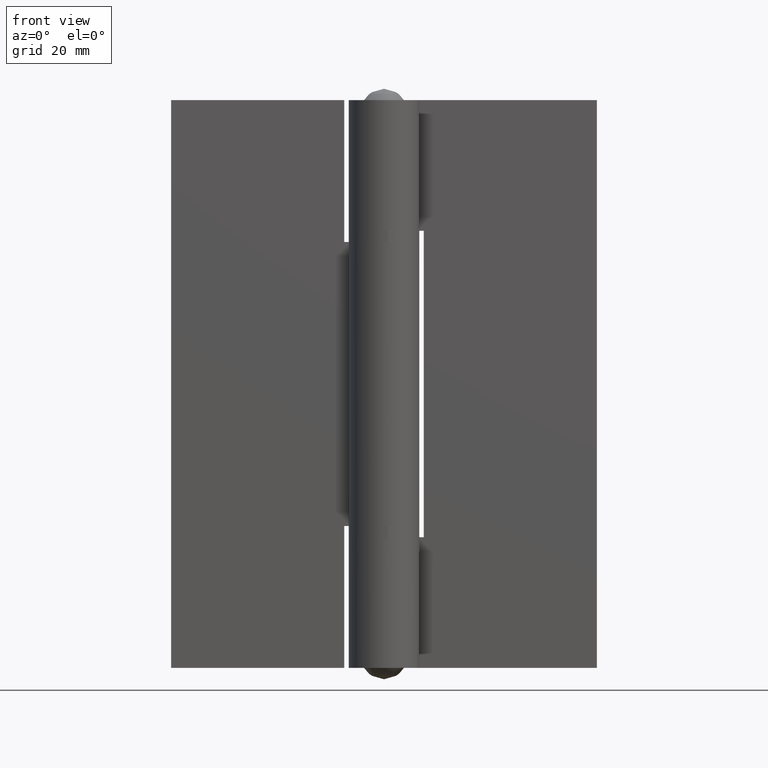
[diagram: clean part render]
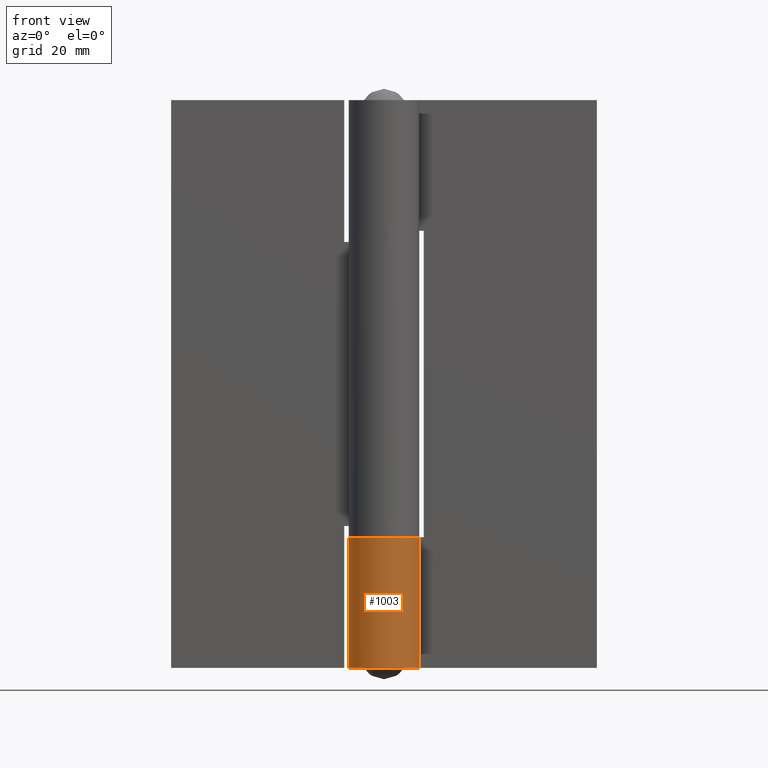
[diagram: same view with one face highlighted and labeled with its STEP entity id]
A machine part, front view. The second image highlights one B-rep face of the part: STEP entity #1003.
In plain terms, the highlighted face is a freeform B-spline surface patch.
Its self-contained STEP definition (entity closure, byte-faithful):
#514=CARTESIAN_POINT('',(-1.138884E-015,6.200001000000000,23.0));
#515=VERTEX_POINT('',#514);
#521=CARTESIAN_POINT('',(5.453210943356470,2.950000475806450,23.0));
#522=VERTEX_POINT('',#521);
#523=CARTESIAN_POINT('',(0.0,6.200001000000000,23.0));
#524=CARTESIAN_POINT('',(-4.723388821527733,6.200000999999999,23.0));
#525=CARTESIAN_POINT('',(-5.977477743463485,1.646138580557449,23.0));
#526=CARTESIAN_POINT('',(-7.231566665399235,-2.907723838885105,23.0));
#527=CARTESIAN_POINT('',(-3.174114561574657,-5.325881067954929,23.0));
#528=CARTESIAN_POINT('',(0.883337542249925,-7.744038297024754,23.0));
#529=CARTESIAN_POINT('',(4.291983680182779,-4.474247253901565,23.0));
#530=CARTESIAN_POINT('',(7.700629818115626,-1.204456210778380,23.0));
#531=CARTESIAN_POINT('',(5.453210943356468,2.950000475806447,23.0));
#539=(BOUNDED_CURVE()B_SPLINE_CURVE(2,(#523,#524,#525,#526,#527,#528,#529,#530,#531),.UNSPECIFIED.,.F.,.U.)B_SPLINE_CURVE_WITH_KNOTS((3,2,2,2,3),(0.0,0.250000000000000,0.500000000000000,0.750000000000000,1.0),.UNSPECIFIED.)CURVE()GEOMETRIC_REPRESENTATION_ITEM()RATIONAL_B_SPLINE_CURVE((1.0,0.795457786386864,1.0,0.795457786386864,1.0,0.795457786386864,1.0,0.795457786386864,1.0))REPRESENTATION_ITEM(''));
#540=EDGE_CURVE('',#515,#522,#539,.T.);
#674=CARTESIAN_POINT('',(-1.138884E-015,6.200001000000000,0.0));
#675=VERTEX_POINT('',#674);
#718=CARTESIAN_POINT('',(5.453210063806460,2.950000000000000,0.0));
#719=VERTEX_POINT('',#718);
#725=CARTESIAN_POINT('',(5.453210063806460,2.950000000000000,0.0));
#726=CARTESIAN_POINT('',(7.700629818115628,-1.204456210778381,0.0));
#727=CARTESIAN_POINT('',(4.291983680182778,-4.474247253901567,0.0));
#728=CARTESIAN_POINT('',(0.883337542249927,-7.744038297024753,0.0));
#729=CARTESIAN_POINT('',(-3.174114561574654,-5.325881067954930,0.0));
#730=CARTESIAN_POINT('',(-7.231566665399238,-2.907723838885107,0.0));
#731=CARTESIAN_POINT('',(-5.977477743463484,1.646138580557450,0.0));
#732=CARTESIAN_POINT('',(-4.723388821527732,6.200001000000000,0.0));
#733=CARTESIAN_POINT('',(0.0,6.200001000000000,0.0));
#741=(BOUNDED_CURVE()B_SPLINE_CURVE(2,(#725,#726,#727,#728,#729,#730,#731,#732,#733),.UNSPECIFIED.,.F.,.U.)B_SPLINE_CURVE_WITH_KNOTS((3,2,2,2,3),(0.0,0.250000000000000,0.500000000000000,0.750000000000000,1.0),.UNSPECIFIED.)CURVE()GEOMETRIC_REPRESENTATION_ITEM()RATIONAL_B_SPLINE_CURVE((1.0,0.795457786386864,1.0,0.795457786386864,1.0,0.795457786386864,1.0,0.795457786386864,1.0))REPRESENTATION_ITEM(''));
#742=EDGE_CURVE('',#719,#675,#741,.T.);
#868=CARTESIAN_POINT('',(5.453210943356470,2.950000475806450,23.0));
#869=CARTESIAN_POINT('',(5.453210063806460,2.950000000000000,0.0));
#870=QUASI_UNIFORM_CURVE('',1,(#868,#869),.UNSPECIFIED.,.F.,.U.);
#871=EDGE_CURVE('',#522,#719,#870,.T.);
#965=CARTESIAN_POINT('',(-1.138884E-015,6.200001000000000,23.0));
#966=CARTESIAN_POINT('',(-1.138884E-015,6.200001000000000,0.0));
#967=QUASI_UNIFORM_CURVE('',1,(#965,#966),.UNSPECIFIED.,.F.,.U.);
#968=EDGE_CURVE('',#515,#675,#967,.T.);
#975=CARTESIAN_POINT('',(0.225907321799328,6.195883979058874,23.574999999999999));
#976=CARTESIAN_POINT('',(0.225907321799328,6.195883979058874,-0.589375000000000));
#977=CARTESIAN_POINT('',(-7.380027151056970,6.473202968948215,23.574999999999999));
#978=CARTESIAN_POINT('',(-7.380027151056970,6.473202968948215,-0.589375000000001));
#979=CARTESIAN_POINT('',(-6.113563298625030,-1.031676399703910,23.574999999999999));
#980=CARTESIAN_POINT('',(-6.113563298625030,-1.031676399703910,-0.589375000000000));
#981=CARTESIAN_POINT('',(-4.847099446193091,-8.536555768356033,23.574999999999999));
#982=CARTESIAN_POINT('',(-4.847099446193091,-8.536555768356033,-0.589375000000001));
#983=CARTESIAN_POINT('',(2.246632535293072,-5.778637785098111,23.574999999999999));
#984=CARTESIAN_POINT('',(2.246632535293072,-5.778637785098111,-0.589375000000000));
#985=CARTESIAN_POINT('',(9.340364516779236,-3.020719801840190,23.574999999999999));
#986=CARTESIAN_POINT('',(9.340364516779236,-3.020719801840190,-0.589375000000001));
#987=CARTESIAN_POINT('',(5.204946144206756,3.368760608281360,23.574999999999999));
#988=CARTESIAN_POINT('',(5.204946144206756,3.368760608281360,-0.589375000000000));
#996=(BOUNDED_SURFACE()B_SPLINE_SURFACE(1,2,((#975,#977,#979,#981,#983,#985,#987),(#976,#978,#980,#982,#984,#986,#988)),.UNSPECIFIED.,.F.,.F.,.U.)B_SPLINE_SURFACE_WITH_KNOTS((2,2),(3,2,2,3),(0.0,24.164375000000000),(0.0,11.784749476774421,23.569498953548841,35.354248430323260),.UNSPECIFIED.)GEOMETRIC_REPRESENTATION_ITEM()RATIONAL_B_SPLINE_SURFACE(((1.0,0.631578351302498,1.0,0.631578351302498,1.0,0.631578351302498,1.0),(1.0,0.631578351302498,1.0,0.631578351302498,1.0,0.631578351302498,1.0)))REPRESENTATION_ITEM('')SURFACE());
#997=ORIENTED_EDGE('',*,*,#871,.F.);
#998=ORIENTED_EDGE('',*,*,#540,.F.);
#999=ORIENTED_EDGE('',*,*,#968,.T.);
#1000=ORIENTED_EDGE('',*,*,#742,.F.);
#1001=EDGE_LOOP('',(#997,#998,#999,#1000));
#1002=FACE_OUTER_BOUND('',#1001,.T.);
#1003=ADVANCED_FACE('',(#1002),#996,.T.);